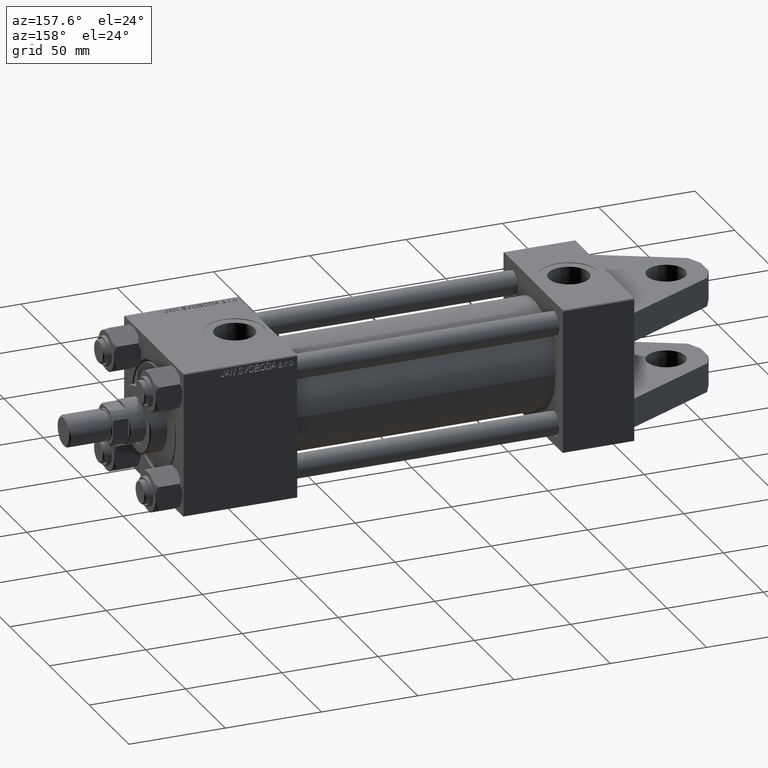
[diagram: clean part render]
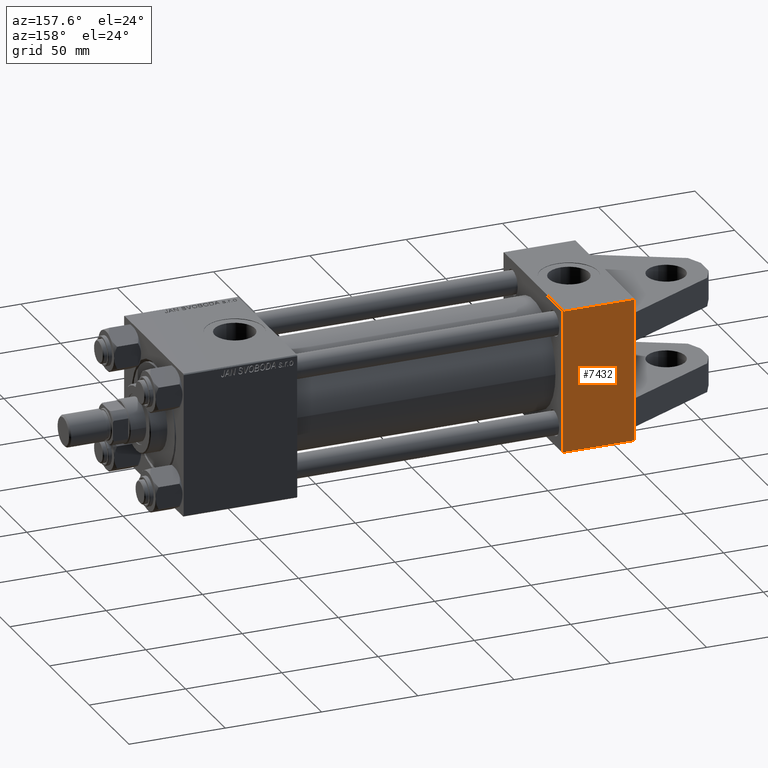
[diagram: same view with one face highlighted and labeled with its STEP entity id]
A machine part, auxiliary view. The second image highlights one B-rep face of the part: STEP entity #7432.
In plain terms, the highlighted planar face has unit normal (0, -1, -0).
Its self-contained STEP definition (entity closure, byte-faithful):
#585 = VERTEX_POINT ( 'NONE', #4168 ) ;
#2799 = EDGE_CURVE ( 'NONE', #26010, #37498, #34515, .T. ) ;
#3279 = VECTOR ( 'NONE', #28812, 1000.000000000000000 ) ;
#3468 = CARTESIAN_POINT ( 'NONE',  ( 37.00000000000000000, 36.99999999999999289, 37.50000000000000000 ) ) ;
#4168 = CARTESIAN_POINT ( 'NONE',  ( 0.000000000000000000, -37.00000000000000711, 37.49999999999999289 ) ) ;
#4423 = ORIENTED_EDGE ( 'NONE', *, *, #2799, .T. ) ;
#4525 = VERTEX_POINT ( 'NONE', #47174 ) ;
#6551 = CARTESIAN_POINT ( 'NONE',  ( 0.000000000000000000, 37.49999999999999289, 37.50000000000000000 ) ) ;
#6823 = DIRECTION ( 'NONE',  ( 0.000000000000000000, -1.000000000000000000, -9.251858538542971581E-17 ) ) ;
#7082 = EDGE_CURVE ( 'NONE', #7906, #21899, #51123, .T. ) ;
#7432 = ADVANCED_FACE ( 'NONE', ( #10321 ), #26393, .F. ) ;
#7750 = CARTESIAN_POINT ( 'NONE',  ( 37.00000000000000000, -37.00000000000000711, 37.49999999999999289 ) ) ;
#7906 = VERTEX_POINT ( 'NONE', #38738 ) ;
#9939 = DIRECTION ( 'NONE',  ( 0.000000000000000000, -1.000000000000000000, -9.251858538542971581E-17 ) ) ;
#10321 = FACE_OUTER_BOUND ( 'NONE', #31415, .T. ) ;
#10770 = VECTOR ( 'NONE', #23887, 1000.000000000000000 ) ;
#11328 = VERTEX_POINT ( 'NONE', #41432 ) ;
#12754 = CARTESIAN_POINT ( 'NONE',  ( 0.000000000000000000, 30.00000000000000000, 37.49999999999999289 ) ) ;
#14410 = VECTOR ( 'NONE', #35027, 1000.000000000000000 ) ;
#17210 = LINE ( 'NONE', #20361, #43517 ) ;
#17797 = CARTESIAN_POINT ( 'NONE',  ( 0.000000000000000000, 15.00000000000000000, 37.50000000000000000 ) ) ;
#17999 = EDGE_CURVE ( 'NONE', #25415, #11328, #21790, .T. ) ;
#18126 = ORIENTED_EDGE ( 'NONE', *, *, #17999, .F. ) ;
#18837 = ORIENTED_EDGE ( 'NONE', *, *, #39381, .T. ) ;
#19027 = CARTESIAN_POINT ( 'NONE',  ( 0.000000000000000000, 36.99999999999999289, 37.50000000000000000 ) ) ;
#19150 = LINE ( 'NONE', #27582, #10770 ) ;
#19222 = CARTESIAN_POINT ( 'NONE',  ( 0.000000000000000000, 30.00000000000000000, 37.50000000000000000 ) ) ;
#20361 = CARTESIAN_POINT ( 'NONE',  ( 0.000000000000000000, -30.00000000000000000, 37.49999999999999289 ) ) ;
#21790 = LINE ( 'NONE', #23037, #51858 ) ;
#21899 = VERTEX_POINT ( 'NONE', #19222 ) ;
#22628 = CARTESIAN_POINT ( 'NONE',  ( 0.000000000000000000, 37.49999999999999289, 37.50000000000000000 ) ) ;
#22770 = VECTOR ( 'NONE', #35125, 1000.000000000000000 ) ;
#22796 = VECTOR ( 'NONE', #6823, 1000.000000000000000 ) ;
#23037 = CARTESIAN_POINT ( 'NONE',  ( 37.00000000000000000, 37.49999999999999289, 37.50000000000000000 ) ) ;
#23887 = DIRECTION ( 'NONE',  ( 0.000000000000000000, -1.000000000000000000, -9.251858538542971581E-17 ) ) ;
#25415 = VERTEX_POINT ( 'NONE', #3468 ) ;
#26010 = VERTEX_POINT ( 'NONE', #17797 ) ;
#26119 = EDGE_CURVE ( 'NONE', #4525, #37498, #17210, .T. ) ;
#26393 = PLANE ( 'NONE',  #41366 ) ;
#27582 = CARTESIAN_POINT ( 'NONE',  ( 0.000000000000000000, 37.49999999999999289, 37.50000000000000000 ) ) ;
#27726 = EDGE_CURVE ( 'NONE', #4525, #585, #19150, .T. ) ;
#28018 = CARTESIAN_POINT ( 'NONE',  ( 0.000000000000000000, -15.00000000000000000, 37.49999999999999289 ) ) ;
#28279 = LINE ( 'NONE', #7750, #31266 ) ;
#28812 = DIRECTION ( 'NONE',  ( -0.000000000000000000, -1.000000000000000000, -0.000000000000000000 ) ) ;
#31266 = VECTOR ( 'NONE', #35710, 1000.000000000000000 ) ;
#31415 = EDGE_LOOP ( 'NONE', ( #37095, #33352, #4423, #43449, #38616, #18837, #18126, #36113 ) ) ;
#32742 = DIRECTION ( 'NONE',  ( -0.000000000000000000, 1.000000000000000000, -0.000000000000000000 ) ) ;
#33352 = ORIENTED_EDGE ( 'NONE', *, *, #48470, .T. ) ;
#34515 = LINE ( 'NONE', #22628, #22796 ) ;
#35027 = DIRECTION ( 'NONE',  ( 0.000000000000000000, -1.000000000000000000, -9.251858538542971581E-17 ) ) ;
#35125 = DIRECTION ( 'NONE',  ( -1.000000000000000000, 0.000000000000000000, 0.000000000000000000 ) ) ;
#35710 = DIRECTION ( 'NONE',  ( 1.000000000000000000, 0.000000000000000000, 0.000000000000000000 ) ) ;
#36113 = ORIENTED_EDGE ( 'NONE', *, *, #51523, .T. ) ;
#37095 = ORIENTED_EDGE ( 'NONE', *, *, #7082, .T. ) ;
#37498 = VERTEX_POINT ( 'NONE', #28018 ) ;
#38022 = DIRECTION ( 'NONE',  ( 0.000000000000000000, 9.251858538542971581E-17, -1.000000000000000000 ) ) ;
#38616 = ORIENTED_EDGE ( 'NONE', *, *, #27726, .T. ) ;
#38738 = CARTESIAN_POINT ( 'NONE',  ( 0.000000000000000000, 36.99999999999999289, 37.50000000000000000 ) ) ;
#39101 = LINE ( 'NONE', #19027, #22770 ) ;
#39381 = EDGE_CURVE ( 'NONE', #585, #11328, #28279, .T. ) ;
#41366 = AXIS2_PLACEMENT_3D ( 'NONE', #41703, #38022, #45927 ) ;
#41432 = CARTESIAN_POINT ( 'NONE',  ( 37.00000000000000000, -37.00000000000000711, 37.49999999999999289 ) ) ;
#41703 = CARTESIAN_POINT ( 'NONE',  ( 37.00000000000000000, 37.49999999999999289, 37.50000000000000000 ) ) ;
#43449 = ORIENTED_EDGE ( 'NONE', *, *, #26119, .F. ) ;
#43517 = VECTOR ( 'NONE', #32742, 1000.000000000000000 ) ;
#45927 = DIRECTION ( 'NONE',  ( 0.000000000000000000, 1.000000000000000000, 9.251858538542971581E-17 ) ) ;
#47174 = CARTESIAN_POINT ( 'NONE',  ( 0.000000000000000000, -30.00000000000001421, 37.49999999999999289 ) ) ;
#48470 = EDGE_CURVE ( 'NONE', #21899, #26010, #48875, .T. ) ;
#48875 = LINE ( 'NONE', #12754, #3279 ) ;
#51123 = LINE ( 'NONE', #6551, #14410 ) ;
#51523 = EDGE_CURVE ( 'NONE', #25415, #7906, #39101, .T. ) ;
#51858 = VECTOR ( 'NONE', #9939, 1000.000000000000000 ) ;